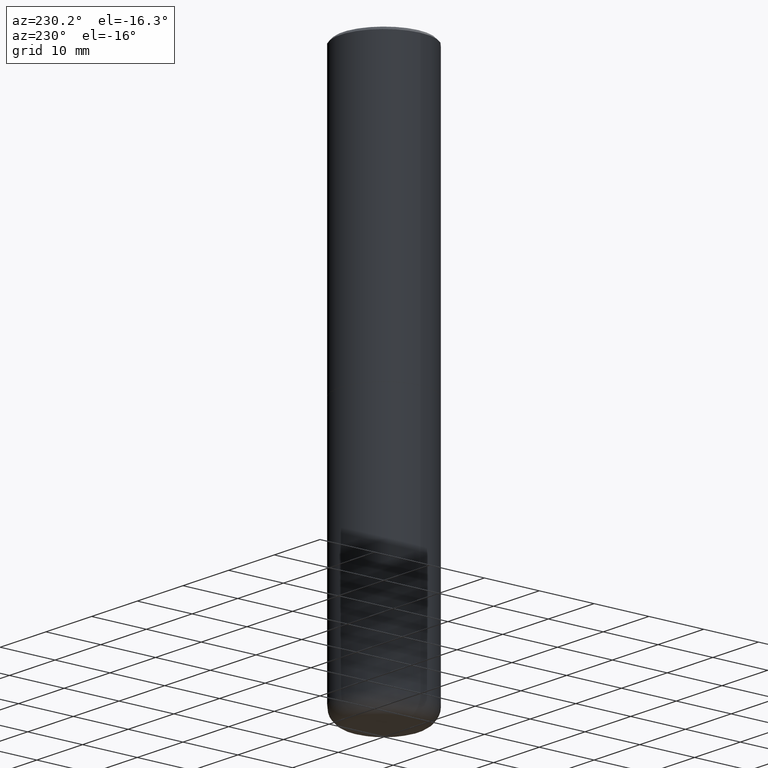
[diagram: clean part render]
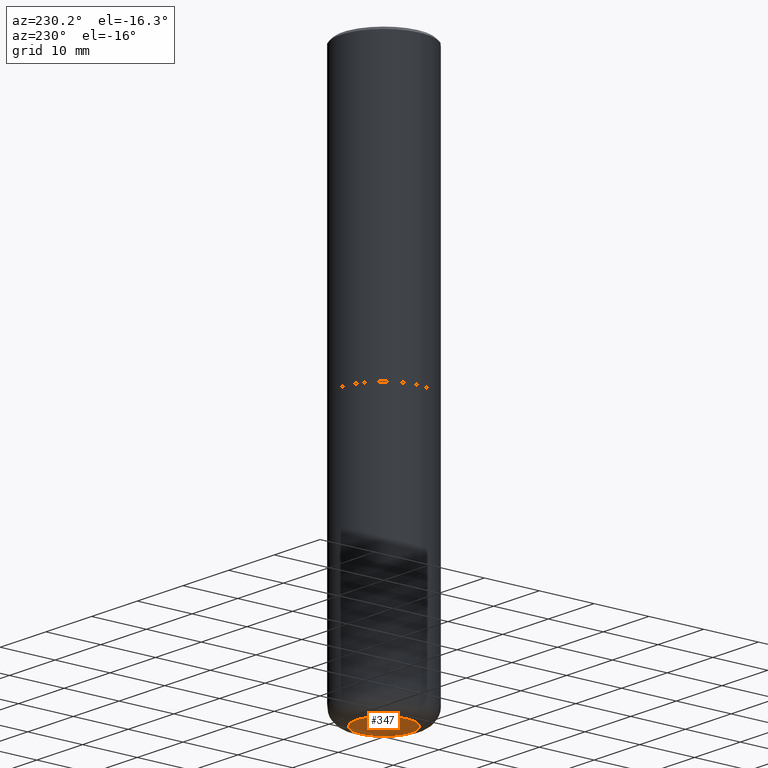
[diagram: same view with one face highlighted and labeled with its STEP entity id]
A machine part, auxiliary view. The second image highlights one B-rep face of the part: STEP entity #347.
In plain terms, the highlighted planar face has unit normal (0, -0, -1).
Its self-contained STEP definition (entity closure, byte-faithful):
#10 = AXIS2_PLACEMENT_3D ( 'NONE', #357, #205, #237 ) ;
#48 = CARTESIAN_POINT ( 'NONE',  ( 9.627810689950883669E-29, -1.374596203102546341E-14, -3.937000000000000277 ) ) ;
#76 = DIRECTION ( 'NONE',  ( -1.000000000000000000, 6.982962677686265922E-15, -4.876176775795935793E-29 ) ) ;
#81 = DIRECTION ( 'NONE',  ( -2.445468806185136597E-29, 3.491481338843145583E-15, 1.000000000000000000 ) ) ;
#83 = DIRECTION ( 'NONE',  ( 1.000000000000000000, -6.982962677686267499E-15, 0.000000000000000000 ) ) ;
#88 = AXIS2_PLACEMENT_3D ( 'NONE', #361, #235, #76 ) ;
#166 = PLANE ( 'NONE',  #88 ) ;
#172 = FACE_OUTER_BOUND ( 'NONE', #204, .T. ) ;
#182 = AXIS2_PLACEMENT_3D ( 'NONE', #48, #81, #83 ) ;
#188 = ORIENTED_EDGE ( 'NONE', *, *, #320, .F. ) ;
#192 = CIRCLE ( 'NONE', #10, 0.1968500000000000250 ) ;
#203 = ORIENTED_EDGE ( 'NONE', *, *, #408, .F. ) ;
#204 = EDGE_LOOP ( 'NONE', ( #203, #188 ) ) ;
#205 = DIRECTION ( 'NONE',  ( -2.445468806185136597E-29, 3.491481338843145583E-15, 1.000000000000000000 ) ) ;
#222 = VERTEX_POINT ( 'NONE', #384 ) ;
#235 = DIRECTION ( 'NONE',  ( 2.438088387897960049E-29, -3.491481338843145188E-15, -1.000000000000000000 ) ) ;
#237 = DIRECTION ( 'NONE',  ( 1.000000000000000000, -6.982962677686267499E-15, 0.000000000000000000 ) ) ;
#252 = VERTEX_POINT ( 'NONE', #324 ) ;
#320 = EDGE_CURVE ( 'NONE', #222, #252, #192, .T. ) ;
#324 = CARTESIAN_POINT ( 'NONE',  ( 0.1968500000000000250, -1.512055823412800660E-14, -3.937000000000000277 ) ) ;
#347 = ADVANCED_FACE ( 'NONE', ( #172 ), #166, .T. ) ;
#356 = CIRCLE ( 'NONE', #182, 0.1968500000000000250 ) ;
#357 = CARTESIAN_POINT ( 'NONE',  ( 9.627810689950883669E-29, -1.374596203102546341E-14, -3.937000000000000277 ) ) ;
#361 = CARTESIAN_POINT ( 'NONE',  ( 9.627810689950883669E-29, -1.374596203102546341E-14, -3.937000000000000277 ) ) ;
#384 = CARTESIAN_POINT ( 'NONE',  ( -0.1968500000000000250, -1.172151119715668222E-14, -3.937000000000000277 ) ) ;
#408 = EDGE_CURVE ( 'NONE', #252, #222, #356, .T. ) ;